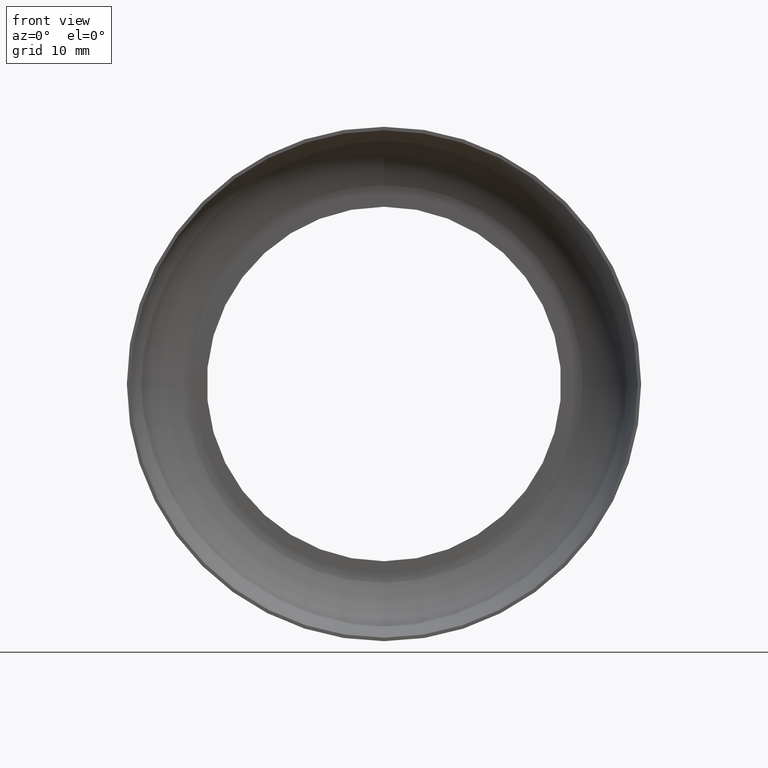
[diagram: clean part render]
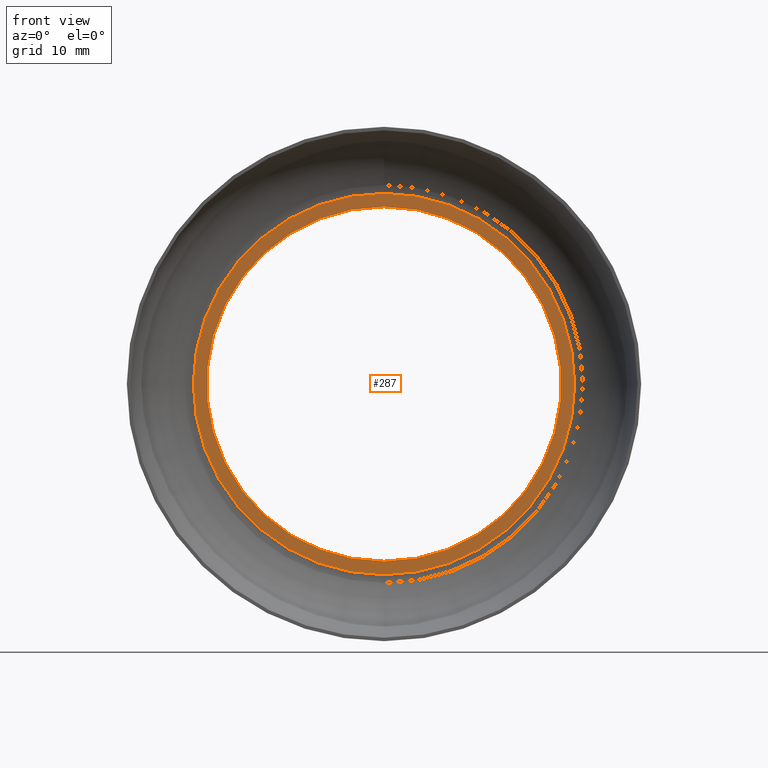
[diagram: same view with one face highlighted and labeled with its STEP entity id]
A machine part, front view. The second image highlights one B-rep face of the part: STEP entity #287.
In plain terms, the highlighted planar face has unit normal (0, 1, 0).
Its self-contained STEP definition (entity closure, byte-faithful):
#9 = CARTESIAN_POINT ( 'NONE',  ( 3.122849337825750200E-015, 10.49999999999999800, -25.50000000000000000 ) ) ;
#13 = EDGE_CURVE ( 'NONE', #140, #62, #18, .T. ) ;
#18 = CIRCLE ( 'NONE', #65, 25.50000000000000000 ) ;
#30 = ORIENTED_EDGE ( 'NONE', *, *, #252, .F. ) ;
#42 = EDGE_LOOP ( 'NONE', ( #30, #97 ) ) ;
#43 = PLANE ( 'NONE',  #289 ) ;
#58 = VERTEX_POINT ( 'NONE', #85 ) ;
#62 = VERTEX_POINT ( 'NONE', #158 ) ;
#65 = AXIS2_PLACEMENT_3D ( 'NONE', #110, #333, #148 ) ;
#73 = CARTESIAN_POINT ( 'NONE',  ( 0.0000000000000000000, 10.49999999999999800, 0.0000000000000000000 ) ) ;
#85 = CARTESIAN_POINT ( 'NONE',  ( 0.0000000000000000000, 10.49999999999999800, 27.42582188602125000 ) ) ;
#94 = DIRECTION ( 'NONE',  ( 0.0000000000000000000, 0.0000000000000000000, 1.000000000000000000 ) ) ;
#97 = ORIENTED_EDGE ( 'NONE', *, *, #180, .F. ) ;
#110 = CARTESIAN_POINT ( 'NONE',  ( 0.0000000000000000000, 10.49999999999999800, 0.0000000000000000000 ) ) ;
#131 = FACE_BOUND ( 'NONE', #263, .T. ) ;
#134 = DIRECTION ( 'NONE',  ( 0.0000000000000000000, 0.0000000000000000000, 1.000000000000000000 ) ) ;
#140 = VERTEX_POINT ( 'NONE', #9 ) ;
#148 = DIRECTION ( 'NONE',  ( 0.0000000000000000000, 0.0000000000000000000, 1.000000000000000000 ) ) ;
#158 = CARTESIAN_POINT ( 'NONE',  ( 0.0000000000000000000, 10.49999999999999800, 25.50000000000000000 ) ) ;
#165 = CARTESIAN_POINT ( 'NONE',  ( 0.0000000000000000000, 10.49999999999999800, 0.0000000000000000000 ) ) ;
#167 = DIRECTION ( 'NONE',  ( 0.0000000000000000000, 1.000000000000000000, 0.0000000000000000000 ) ) ;
#169 = CARTESIAN_POINT ( 'NONE',  ( 0.0000000000000000000, 10.49999999999999800, 0.0000000000000000000 ) ) ;
#180 = EDGE_CURVE ( 'NONE', #304, #58, #247, .T. ) ;
#181 = CIRCLE ( 'NONE', #237, 25.50000000000000000 ) ;
#198 = CARTESIAN_POINT ( 'NONE',  ( 3.431676653716177400E-015, 10.49999999999999800, -27.42582188602125000 ) ) ;
#203 = DIRECTION ( 'NONE',  ( 0.0000000000000000000, 1.000000000000000000, 0.0000000000000000000 ) ) ;
#205 = DIRECTION ( 'NONE',  ( 0.0000000000000000000, -0.0000000000000000000, 1.000000000000000000 ) ) ;
#207 = CIRCLE ( 'NONE', #355, 27.42582188602125000 ) ;
#221 = EDGE_CURVE ( 'NONE', #62, #140, #181, .T. ) ;
#227 = DIRECTION ( 'NONE',  ( 0.0000000000000000000, 0.0000000000000000000, 1.000000000000000000 ) ) ;
#237 = AXIS2_PLACEMENT_3D ( 'NONE', #169, #253, #94 ) ;
#238 = FACE_OUTER_BOUND ( 'NONE', #42, .T. ) ;
#247 = CIRCLE ( 'NONE', #389, 27.42582188602125000 ) ;
#252 = EDGE_CURVE ( 'NONE', #58, #304, #207, .T. ) ;
#253 = DIRECTION ( 'NONE',  ( 0.0000000000000000000, 1.000000000000000000, 0.0000000000000000000 ) ) ;
#263 = EDGE_LOOP ( 'NONE', ( #297, #341 ) ) ;
#287 = ADVANCED_FACE ( 'NONE', ( #131, #238 ), #43, .F. ) ;
#289 = AXIS2_PLACEMENT_3D ( 'NONE', #291, #203, #205 ) ;
#291 = CARTESIAN_POINT ( 'NONE',  ( 0.0000000000000000000, 10.49999999999999800, 0.0000000000000000000 ) ) ;
#297 = ORIENTED_EDGE ( 'NONE', *, *, #221, .T. ) ;
#304 = VERTEX_POINT ( 'NONE', #198 ) ;
#322 = DIRECTION ( 'NONE',  ( 0.0000000000000000000, 1.000000000000000000, 0.0000000000000000000 ) ) ;
#333 = DIRECTION ( 'NONE',  ( 0.0000000000000000000, 1.000000000000000000, 0.0000000000000000000 ) ) ;
#341 = ORIENTED_EDGE ( 'NONE', *, *, #13, .T. ) ;
#355 = AXIS2_PLACEMENT_3D ( 'NONE', #165, #167, #227 ) ;
#389 = AXIS2_PLACEMENT_3D ( 'NONE', #73, #322, #134 ) ;